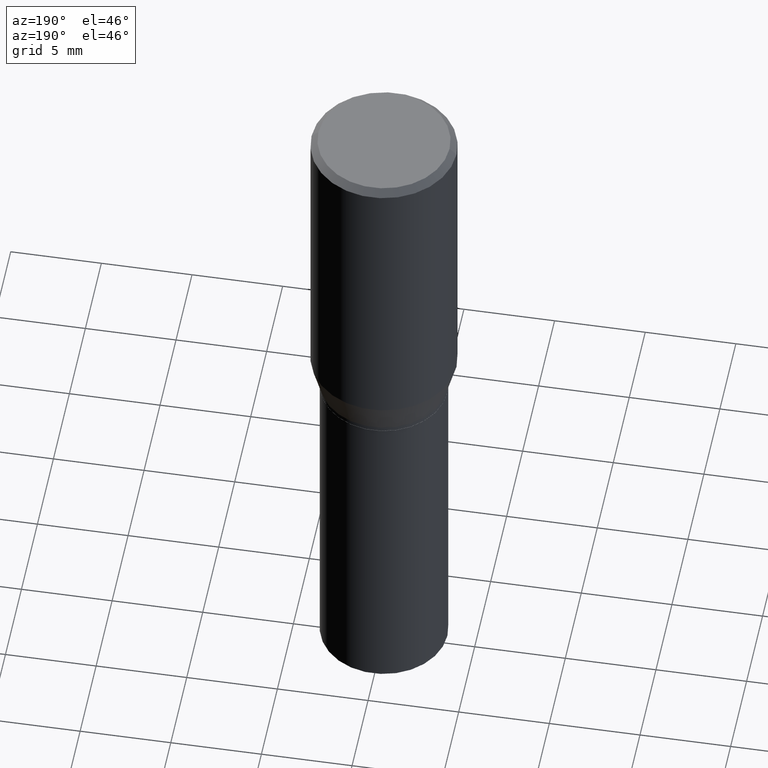
[diagram: clean part render]
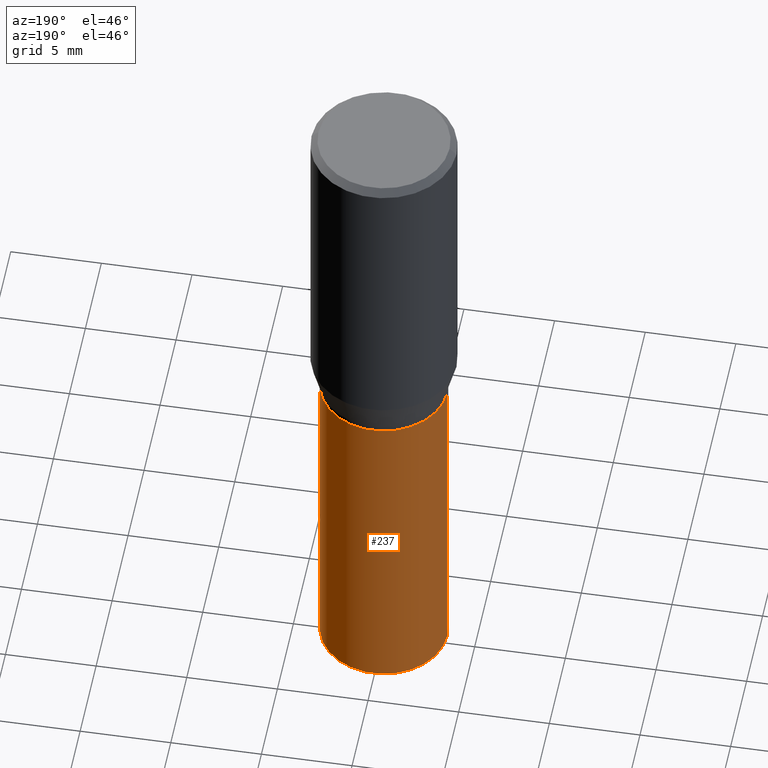
[diagram: same view with one face highlighted and labeled with its STEP entity id]
A machine part, auxiliary view. The second image highlights one B-rep face of the part: STEP entity #237.
In plain terms, the highlighted cylindrical surface (partial cylindrical patch) has radius 3.5001 mm, axis along (-0, 0, 1).
Its self-contained STEP definition (entity closure, byte-faithful):
#13 = VERTEX_POINT ( 'NONE', #393 ) ;
#15 = LINE ( 'NONE', #343, #160 ) ;
#39 = DIRECTION ( 'NONE',  ( -2.445468806185136597E-29, 3.491481338843145583E-15, 1.000000000000000000 ) ) ;
#44 = DIRECTION ( 'NONE',  ( -2.445468806185136597E-29, 3.491481338843145583E-15, 1.000000000000000000 ) ) ;
#47 = DIRECTION ( 'NONE',  ( -2.445468806185136877E-29, 3.491481338843145188E-15, 1.000000000000000000 ) ) ;
#59 = CARTESIAN_POINT ( 'NONE',  ( 0.1378000000000000058, -6.199474265249886443E-15, -1.500000000000000222 ) ) ;
#67 = ORIENTED_EDGE ( 'NONE', *, *, #465, .F. ) ;
#73 = AXIS2_PLACEMENT_3D ( 'NONE', #350, #39, #329 ) ;
#107 = CYLINDRICAL_SURFACE ( 'NONE', #73, 0.1378000000000000058 ) ;
#116 = DIRECTION ( 'NONE',  ( 1.000000000000000000, -6.982962677686265922E-15, 0.000000000000000000 ) ) ;
#121 = VERTEX_POINT ( 'NONE', #266 ) ;
#131 = CARTESIAN_POINT ( 'NONE',  ( -0.1378000000000000058, 9.791278898774180975E-16, -6.778292554371260034E-30 ) ) ;
#139 = EDGE_CURVE ( 'NONE', #121, #142, #191, .T. ) ;
#142 = VERTEX_POINT ( 'NONE', #232 ) ;
#160 = VECTOR ( 'NONE', #369, 39.37007874015748143 ) ;
#182 = VERTEX_POINT ( 'NONE', #59 ) ;
#186 = FACE_OUTER_BOUND ( 'NONE', #385, .T. ) ;
#187 = DIRECTION ( 'NONE',  ( -2.445468806185136597E-29, 3.491481338843145583E-15, 1.000000000000000000 ) ) ;
#191 = CIRCLE ( 'NONE', #432, 0.1378000000000000058 ) ;
#194 = ORIENTED_EDGE ( 'NONE', *, *, #139, .F. ) ;
#232 = CARTESIAN_POINT ( 'NONE',  ( -0.1378000000000000058, -2.952280097659963937E-15, -0.7520000000000001128 ) ) ;
#234 = CIRCLE ( 'NONE', #328, 0.1378000000000000058 ) ;
#237 = ADVANCED_FACE ( 'NONE', ( #186 ), #107, .T. ) ;
#240 = ORIENTED_EDGE ( 'NONE', *, *, #282, .T. ) ;
#266 = CARTESIAN_POINT ( 'NONE',  ( 0.1378000000000000058, -3.587846223795212974E-15, -0.7520000000000001128 ) ) ;
#282 = EDGE_CURVE ( 'NONE', #182, #13, #234, .T. ) ;
#298 = CARTESIAN_POINT ( 'NONE',  ( 3.668203209277704895E-29, -5.237222008264718177E-15, -1.500000000000000222 ) ) ;
#300 = CARTESIAN_POINT ( 'NONE',  ( 1.838992542251222813E-29, -2.625593966810045497E-15, -0.7520000000000001128 ) ) ;
#328 = AXIS2_PLACEMENT_3D ( 'NONE', #298, #187, #463 ) ;
#329 = DIRECTION ( 'NONE',  ( 1.000000000000000000, -6.982962677686267499E-15, 4.876176775795935793E-29 ) ) ;
#343 = CARTESIAN_POINT ( 'NONE',  ( 0.1378000000000000058, -9.622522569851676742E-16, 6.719371597046799937E-30 ) ) ;
#347 = ORIENTED_EDGE ( 'NONE', *, *, #424, .T. ) ;
#350 = CARTESIAN_POINT ( 'NONE',  ( 0.000000000000000000, 0.000000000000000000, 0.000000000000000000 ) ) ;
#369 = DIRECTION ( 'NONE',  ( -2.445468806185136877E-29, 3.491481338843145188E-15, 1.000000000000000000 ) ) ;
#374 = LINE ( 'NONE', #131, #466 ) ;
#385 = EDGE_LOOP ( 'NONE', ( #240, #347, #194, #67 ) ) ;
#393 = CARTESIAN_POINT ( 'NONE',  ( -0.1378000000000000058, -2.952280097659963937E-15, -1.500000000000000222 ) ) ;
#424 = EDGE_CURVE ( 'NONE', #13, #142, #374, .T. ) ;
#432 = AXIS2_PLACEMENT_3D ( 'NONE', #300, #44, #116 ) ;
#463 = DIRECTION ( 'NONE',  ( 1.000000000000000000, -6.982962677686265922E-15, 0.000000000000000000 ) ) ;
#465 = EDGE_CURVE ( 'NONE', #182, #121, #15, .T. ) ;
#466 = VECTOR ( 'NONE', #47, 39.37007874015748143 ) ;